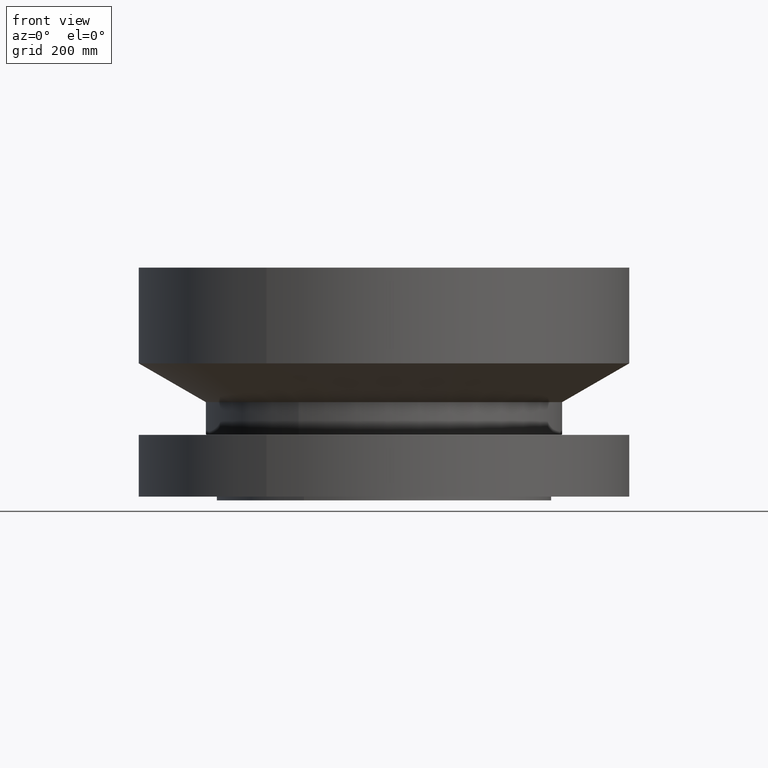
[diagram: clean part render]
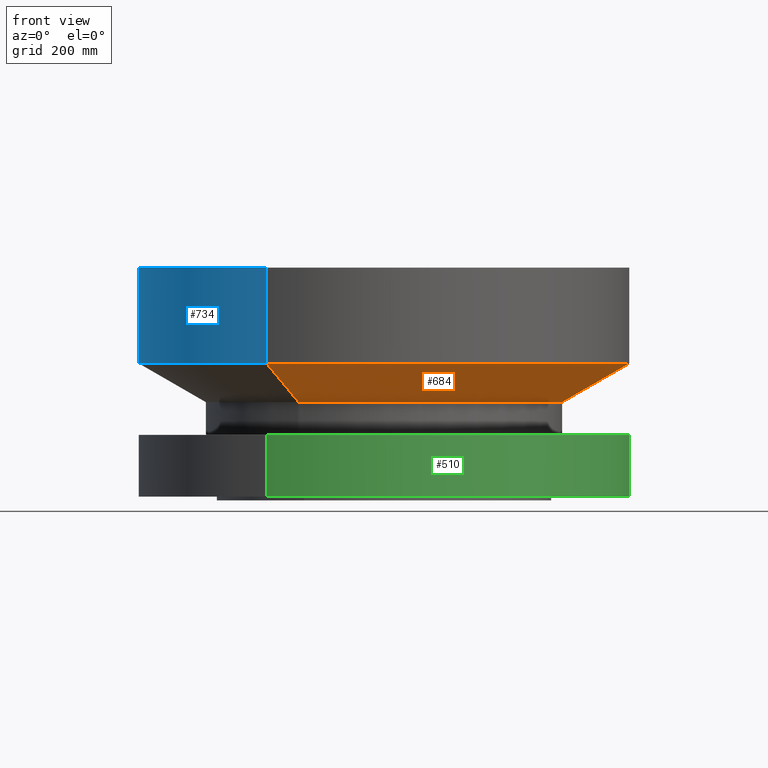
[diagram: same view with three faces highlighted in distinct colors, each labeled with its STEP entity id]
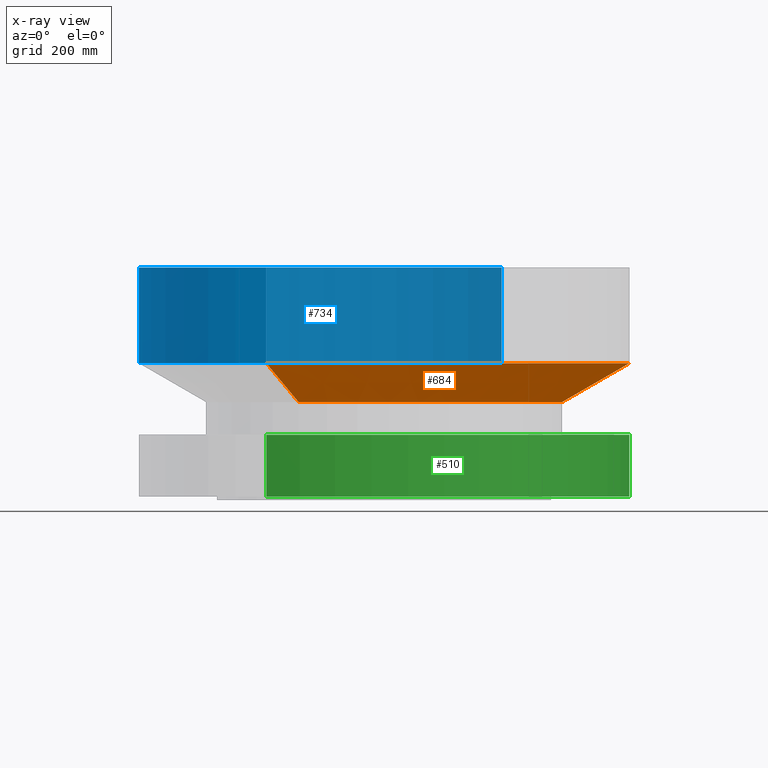
[diagram: x-ray of the same camera — body ghosted, the three highlighted faces saturated]
A machine part, front view with three faces highlighted in distinct colors.
The next image is the same camera in x-ray (body ghosted, the three faces saturated) — at least one of them is partly hidden behind the body in this view.
Their STEP definitions:

[orange] entity #684 — the highlighted conical surface has half-angle 60 deg.
#625=AXIS2_PLACEMENT_3D('Circle Axis2P3D',#623,#624,$) ;
#657=AXIS2_PLACEMENT_3D('Cone Axis2P3D',#654,#655,#656) ;
#668=AXIS2_PLACEMENT_3D('Circle Axis2P3D',#666,#667,$) ;
#620=CARTESIAN_POINT('Vertex',(5.87296284792,10.7503863832,6.50000000003)) ;
#623=CARTESIAN_POINT('Axis2P3D Location',(0.,0.,6.50000000003)) ;
#627=CARTESIAN_POINT('Vertex',(-5.87296284792,-10.7503863832,6.50000000003)) ;
#654=CARTESIAN_POINT('Axis2P3D Location',(0.,0.,6.50000000003)) ;
#659=CARTESIAN_POINT('Line Origine',(6.98163440595,12.7797960576,7.83512249753)) ;
#663=CARTESIAN_POINT('Vertex',(8.09030596398,14.809205732,9.17024499504)) ;
#666=CARTESIAN_POINT('Axis2P3D Location',(0.,0.,9.17024499504)) ;
#670=CARTESIAN_POINT('Vertex',(-8.09030596398,-14.809205732,9.17024499504)) ;
#673=CARTESIAN_POINT('Line Origine',(-6.98163440595,-12.7797960576,7.83512249753)) ;
#624=DIRECTION('Axis2P3D Direction',(0.,0.,-0.0393700787402)) ;
#655=DIRECTION('Axis2P3D Direction',(-0.,-0.,0.0393700787402)) ;
#656=DIRECTION('Axis2P3D XDirection',(0.0188750212049,0.0345504945626,0.)) ;
#660=DIRECTION('Vector Direction',(0.0163462478604,0.0299216060045,0.0196850393701)) ;
#667=DIRECTION('Axis2P3D Direction',(-0.,0.,0.0393700787402)) ;
#674=DIRECTION('Vector Direction',(-0.0163462478604,-0.0299216060045,0.0196850393701)) ;
#661=VECTOR('Line Direction',#660,0.0393700787402) ;
#675=VECTOR('Line Direction',#674,0.0393700787402) ;
#679=ORIENTED_EDGE('',*,*,#629,.F.) ;
#680=ORIENTED_EDGE('',*,*,#665,.T.) ;
#681=ORIENTED_EDGE('',*,*,#672,.T.) ;
#682=ORIENTED_EDGE('',*,*,#677,.F.) ;
#684=ADVANCED_FACE('PartBody',(#683),#658,.T.) ;
#626=CIRCLE('generated circle',#625,12.25) ;
#669=CIRCLE('generated circle',#668,16.8750000001) ;
#658=CONICAL_SURFACE('Cone',#657,12.25,1.0471975512) ;
#629=EDGE_CURVE('',#621,#628,#626,.T.) ;
#665=EDGE_CURVE('',#621,#664,#662,.T.) ;
#672=EDGE_CURVE('',#664,#671,#669,.F.) ;
#677=EDGE_CURVE('',#628,#671,#676,.T.) ;
#678=EDGE_LOOP('',(#679,#680,#681,#682)) ;
#683=FACE_OUTER_BOUND('',#678,.T.) ;
#662=LINE('Line',#659,#661) ;
#676=LINE('Line',#673,#675) ;
#621=VERTEX_POINT('',#620) ;
#628=VERTEX_POINT('',#627) ;
#664=VERTEX_POINT('',#663) ;
#671=VERTEX_POINT('',#670) ;

[blue] entity #734 — the highlighted cylindrical surface (partial cylindrical patch) has radius 428.625 mm, axis along (0, 0, -1).
#471=AXIS2_PLACEMENT_3D('Cylinder Axis2P3D',#468,#469,#470) ;
#687=AXIS2_PLACEMENT_3D('Circle Axis2P3D',#685,#686,$) ;
#725=AXIS2_PLACEMENT_3D('Circle Axis2P3D',#723,#724,$) ;
#468=CARTESIAN_POINT('Axis2P3D Location',(0.,0.,7.75000000003)) ;
#663=CARTESIAN_POINT('Vertex',(8.09030596398,14.809205732,9.17024499504)) ;
#670=CARTESIAN_POINT('Vertex',(-8.09030596398,-14.809205732,9.17024499504)) ;
#685=CARTESIAN_POINT('Axis2P3D Location',(0.,0.,9.17024499504)) ;
#697=CARTESIAN_POINT('Line Origine',(8.09030596398,14.809205732,12.4601224976)) ;
#701=CARTESIAN_POINT('Vertex',(8.09030596398,14.809205732,15.7500000001)) ;
#708=CARTESIAN_POINT('Vertex',(-8.09030596398,-14.809205732,15.7500000001)) ;
#711=CARTESIAN_POINT('Line Origine',(-8.09030596398,-14.809205732,12.4601224976)) ;
#723=CARTESIAN_POINT('Axis2P3D Location',(0.,0.,15.7500000001)) ;
#469=DIRECTION('Axis2P3D Direction',(0.,0.,-0.0393700787402)) ;
#470=DIRECTION('Axis2P3D XDirection',(-0.0188750212049,-0.0345504945626,0.)) ;
#686=DIRECTION('Axis2P3D Direction',(-0.,0.,0.0393700787402)) ;
#698=DIRECTION('Vector Direction',(0.,0.,-0.0393700787402)) ;
#712=DIRECTION('Vector Direction',(0.,0.,-0.0393700787402)) ;
#724=DIRECTION('Axis2P3D Direction',(0.,0.,-0.0393700787402)) ;
#699=VECTOR('Line Direction',#698,0.0393700787402) ;
#713=VECTOR('Line Direction',#712,0.0393700787402) ;
#729=ORIENTED_EDGE('',*,*,#689,.F.) ;
#730=ORIENTED_EDGE('',*,*,#715,.T.) ;
#731=ORIENTED_EDGE('',*,*,#727,.T.) ;
#732=ORIENTED_EDGE('',*,*,#703,.F.) ;
#734=ADVANCED_FACE('PartBody',(#733),#472,.T.) ;
#688=CIRCLE('generated circle',#687,16.8750000001) ;
#726=CIRCLE('generated circle',#725,16.8750000001) ;
#472=CYLINDRICAL_SURFACE('generated cylinder',#471,16.8750000001) ;
#689=EDGE_CURVE('',#671,#664,#688,.F.) ;
#703=EDGE_CURVE('',#664,#702,#700,.F.) ;
#715=EDGE_CURVE('',#671,#709,#714,.F.) ;
#727=EDGE_CURVE('',#709,#702,#726,.T.) ;
#728=EDGE_LOOP('',(#729,#730,#731,#732)) ;
#733=FACE_OUTER_BOUND('',#728,.T.) ;
#700=LINE('Line',#697,#699) ;
#714=LINE('Line',#711,#713) ;
#664=VERTEX_POINT('',#663) ;
#671=VERTEX_POINT('',#670) ;
#702=VERTEX_POINT('',#701) ;
#709=VERTEX_POINT('',#708) ;

[green] entity #510 — the highlighted cylindrical surface (partial cylindrical patch) has radius 428.625 mm, axis along (0, 0, -1).
#91=AXIS2_PLACEMENT_3D('Circle Axis2P3D',#89,#90,$) ;
#471=AXIS2_PLACEMENT_3D('Cylinder Axis2P3D',#468,#469,#470) ;
#501=AXIS2_PLACEMENT_3D('Circle Axis2P3D',#499,#500,$) ;
#84=CARTESIAN_POINT('Vertex',(-8.09030596398,-14.809205732,2.23792987641E-015)) ;
#86=CARTESIAN_POINT('Vertex',(8.09030596398,14.809205732,2.23792987641E-015)) ;
#89=CARTESIAN_POINT('Axis2P3D Location',(0.,0.,0.)) ;
#468=CARTESIAN_POINT('Axis2P3D Location',(0.,0.,7.75000000003)) ;
#473=CARTESIAN_POINT('Line Origine',(-8.09030596398,-14.809205732,12.4601224976)) ;
#477=CARTESIAN_POINT('Vertex',(-8.09030596398,-14.809205732,4.25000000002)) ;
#484=CARTESIAN_POINT('Vertex',(8.09030596398,14.809205732,4.25000000002)) ;
#487=CARTESIAN_POINT('Line Origine',(8.09030596398,14.809205732,12.4601224976)) ;
#499=CARTESIAN_POINT('Axis2P3D Location',(0.,0.,4.25000000002)) ;
#90=DIRECTION('Axis2P3D Direction',(0.,0.,-0.0393700787402)) ;
#469=DIRECTION('Axis2P3D Direction',(0.,0.,-0.0393700787402)) ;
#470=DIRECTION('Axis2P3D XDirection',(-0.0188750212049,-0.0345504945626,0.)) ;
#474=DIRECTION('Vector Direction',(0.,0.,-0.0393700787402)) ;
#488=DIRECTION('Vector Direction',(0.,0.,-0.0393700787402)) ;
#500=DIRECTION('Axis2P3D Direction',(0.,0.,-0.0393700787402)) ;
#475=VECTOR('Line Direction',#474,0.0393700787402) ;
#489=VECTOR('Line Direction',#488,0.0393700787402) ;
#505=ORIENTED_EDGE('',*,*,#93,.F.) ;
#506=ORIENTED_EDGE('',*,*,#491,.T.) ;
#507=ORIENTED_EDGE('',*,*,#503,.T.) ;
#508=ORIENTED_EDGE('',*,*,#479,.F.) ;
#510=ADVANCED_FACE('PartBody',(#509),#472,.T.) ;
#92=CIRCLE('generated circle',#91,16.8750000001) ;
#502=CIRCLE('generated circle',#501,16.8750000001) ;
#472=CYLINDRICAL_SURFACE('generated cylinder',#471,16.8750000001) ;
#93=EDGE_CURVE('',#87,#85,#92,.T.) ;
#479=EDGE_CURVE('',#85,#478,#476,.F.) ;
#491=EDGE_CURVE('',#87,#485,#490,.F.) ;
#503=EDGE_CURVE('',#485,#478,#502,.T.) ;
#504=EDGE_LOOP('',(#505,#506,#507,#508)) ;
#509=FACE_OUTER_BOUND('',#504,.T.) ;
#476=LINE('Line',#473,#475) ;
#490=LINE('Line',#487,#489) ;
#85=VERTEX_POINT('',#84) ;
#87=VERTEX_POINT('',#86) ;
#478=VERTEX_POINT('',#477) ;
#485=VERTEX_POINT('',#484) ;